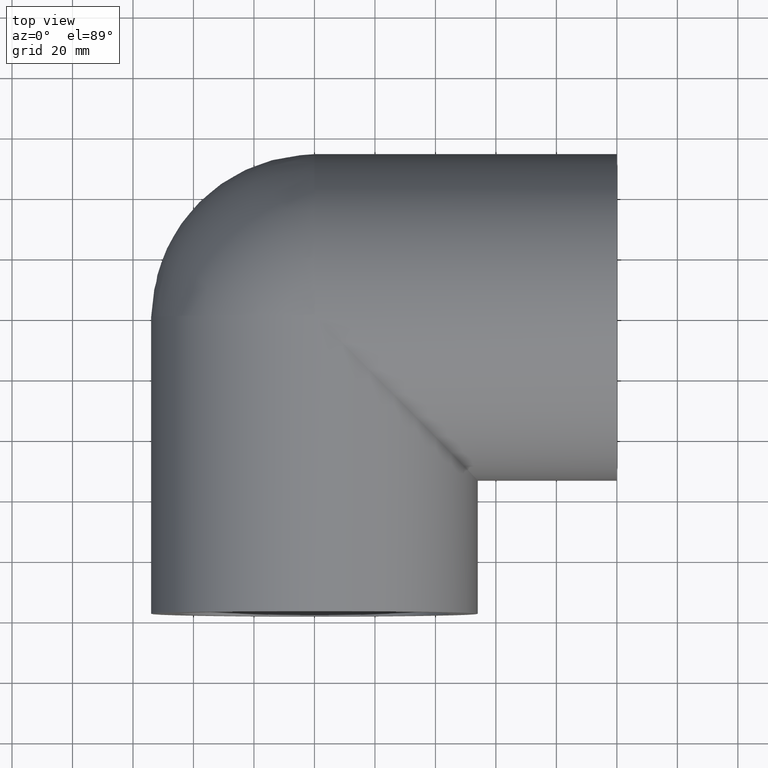
[diagram: clean part render]
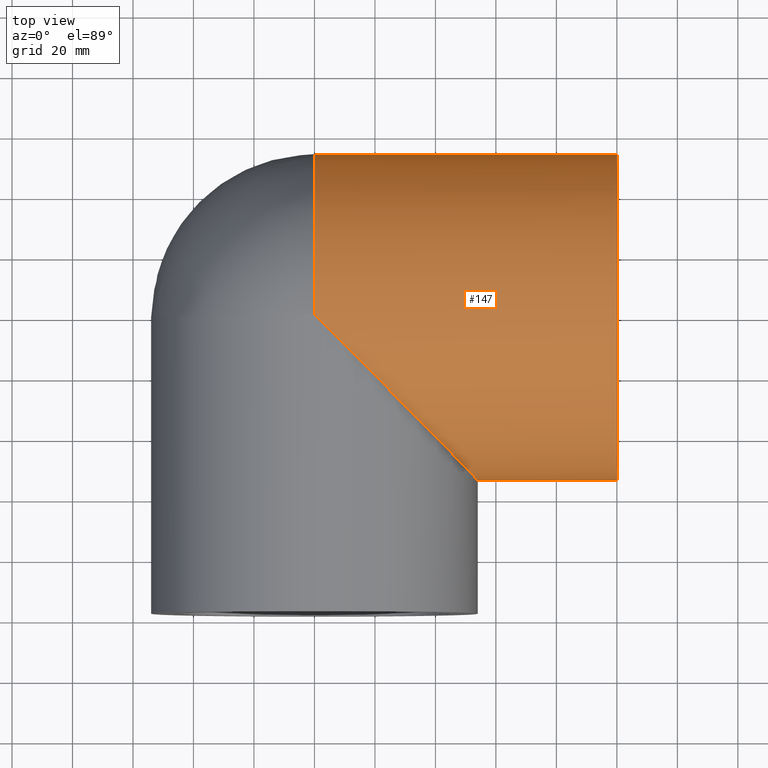
[diagram: same view with one face highlighted and labeled with its STEP entity id]
A machine part, top view. The second image highlights one B-rep face of the part: STEP entity #147.
In plain terms, the highlighted cylindrical surface (bore or boss wall) has radius 54 mm, axis along (1, 0, 0).
Its self-contained STEP definition (entity closure, byte-faithful):
#15=ELLIPSE('',#171,76.3675323681471,54.);
#31=FACE_BOUND('',#65,.T.);
#43=FACE_OUTER_BOUND('',#64,.T.);
#64=EDGE_LOOP('',(#126,#127));
#65=EDGE_LOOP('',(#128));
#76=CIRCLE('',#167,54.);
#79=CIRCLE('',#174,54.);
#88=VERTEX_POINT('',#253);
#89=VERTEX_POINT('',#254);
#91=VERTEX_POINT('',#263);
#100=EDGE_CURVE('',#88,#89,#76,.T.);
#103=EDGE_CURVE('',#89,#88,#15,.T.);
#104=EDGE_CURVE('',#91,#91,#79,.T.);
#126=ORIENTED_EDGE('',*,*,#103,.T.);
#127=ORIENTED_EDGE('',*,*,#100,.T.);
#128=ORIENTED_EDGE('',*,*,#104,.F.);
#136=CYLINDRICAL_SURFACE('',#173,54.);
#147=ADVANCED_FACE('',(#43,#31),#136,.T.);
#167=AXIS2_PLACEMENT_3D('',#255,#210,#211);
#171=AXIS2_PLACEMENT_3D('',#260,#218,#219);
#173=AXIS2_PLACEMENT_3D('',#262,#222,#223);
#174=AXIS2_PLACEMENT_3D('',#264,#224,#225);
#210=DIRECTION('center_axis',(1.,0.,0.));
#211=DIRECTION('ref_axis',(0.,0.,-1.));
#218=DIRECTION('center_axis',(0.707106781186548,0.707106781186547,0.));
#219=DIRECTION('ref_axis',(-0.707106781186547,0.707106781186548,0.));
#222=DIRECTION('center_axis',(1.,0.,0.));
#223=DIRECTION('ref_axis',(0.,1.,0.));
#224=DIRECTION('center_axis',(1.,0.,0.));
#225=DIRECTION('ref_axis',(0.,0.,-1.));
#253=CARTESIAN_POINT('',(-1.98392781461871E-14,-1.61974056527481E-30,-54.));
#254=CARTESIAN_POINT('',(-1.98392781461871E-14,-1.61974056527481E-30,54.));
#255=CARTESIAN_POINT('Origin',(-1.77635683940025E-14,0.,0.));
#260=CARTESIAN_POINT('Origin',(0.,0.,0.));
#262=CARTESIAN_POINT('Origin',(50.,0.,0.));
#263=CARTESIAN_POINT('',(100.,54.,0.));
#264=CARTESIAN_POINT('Origin',(100.,0.,0.));